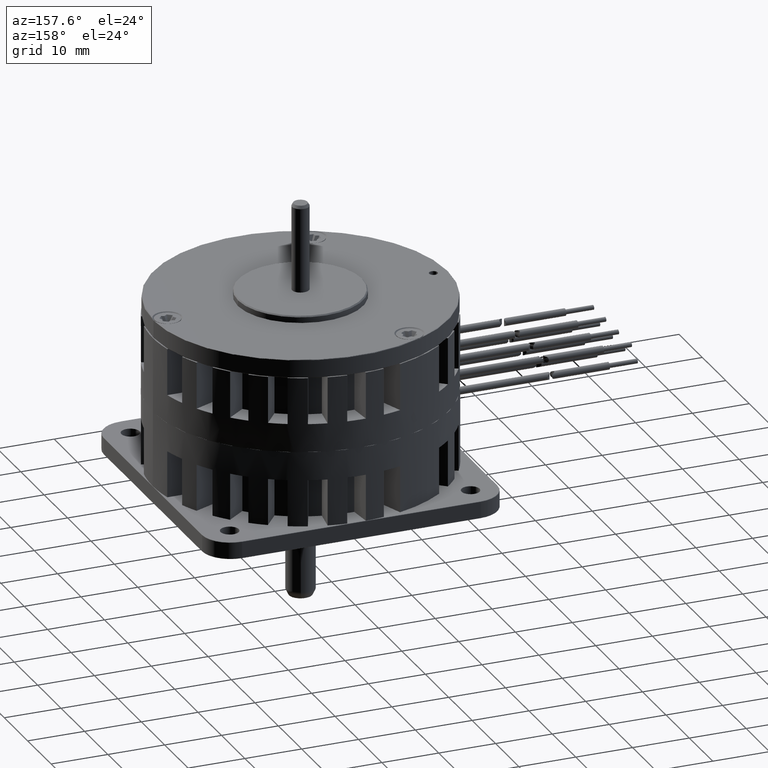
[diagram: clean part render]
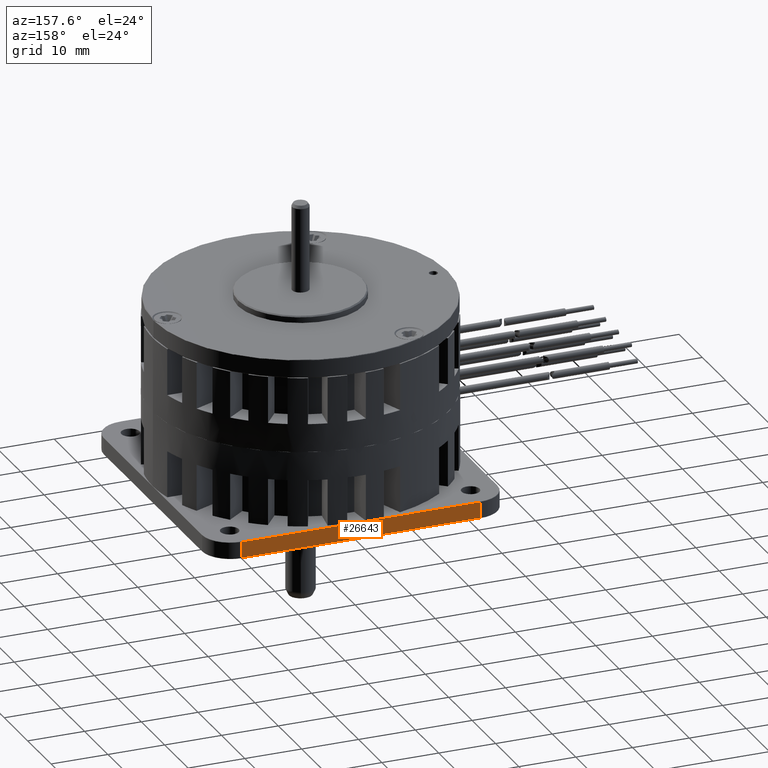
[diagram: same view with one face highlighted and labeled with its STEP entity id]
A machine part, auxiliary view. The second image highlights one B-rep face of the part: STEP entity #26643.
In plain terms, the highlighted planar face has unit normal (0, 1, 0).
Its self-contained STEP definition (entity closure, byte-faithful):
#25799=DIRECTION('',(1.E0,0.E0,0.E0));
#25800=VECTOR('',#25799,4.2E1);
#25801=CARTESIAN_POINT('',(-2.1E1,2.6E1,2.9E0));
#25802=LINE('',#25801,#25800);
#25857=DIRECTION('',(0.E0,0.E0,-1.E0));
#25858=VECTOR('',#25857,2.8E0);
#25859=CARTESIAN_POINT('',(2.1E1,2.6E1,2.9E0));
#25860=LINE('',#25859,#25858);
#25869=DIRECTION('',(0.E0,0.E0,1.E0));
#25870=VECTOR('',#25869,2.8E0);
#25871=CARTESIAN_POINT('',(-2.1E1,2.6E1,1.E-1));
#25872=LINE('',#25871,#25870);
#25942=DIRECTION('',(-1.E0,0.E0,0.E0));
#25943=VECTOR('',#25942,4.2E1);
#25944=CARTESIAN_POINT('',(2.1E1,2.6E1,1.E-1));
#25945=LINE('',#25944,#25943);
#26273=CARTESIAN_POINT('',(2.1E1,2.6E1,2.9E0));
#26274=VERTEX_POINT('',#26273);
#26275=CARTESIAN_POINT('',(-2.1E1,2.6E1,2.9E0));
#26276=VERTEX_POINT('',#26275);
#26293=CARTESIAN_POINT('',(2.1E1,2.6E1,1.E-1));
#26294=VERTEX_POINT('',#26293);
#26295=CARTESIAN_POINT('',(-2.1E1,2.6E1,1.E-1));
#26296=VERTEX_POINT('',#26295);
#26630=CARTESIAN_POINT('',(-2.6E1,2.6E1,3.E0));
#26631=DIRECTION('',(0.E0,1.E0,0.E0));
#26632=DIRECTION('',(-1.E0,0.E0,0.E0));
#26633=AXIS2_PLACEMENT_3D('',#26630,#26631,#26632);
#26634=PLANE('',#26633);
#26636=ORIENTED_EDGE('',*,*,#26635,.F.);
#26638=ORIENTED_EDGE('',*,*,#26637,.F.);
#26639=ORIENTED_EDGE('',*,*,#26621,.F.);
#26640=ORIENTED_EDGE('',*,*,#26512,.F.);
#26641=EDGE_LOOP('',(#26636,#26638,#26639,#26640));
#26642=FACE_OUTER_BOUND('',#26641,.F.);
#26643=ADVANCED_FACE('',(#26642),#26634,.T.);
#26512=EDGE_CURVE('',#26276,#26274,#25802,.T.);
#26621=EDGE_CURVE('',#26274,#26294,#25860,.T.);
#26635=EDGE_CURVE('',#26296,#26276,#25872,.T.);
#26637=EDGE_CURVE('',#26294,#26296,#25945,.T.);